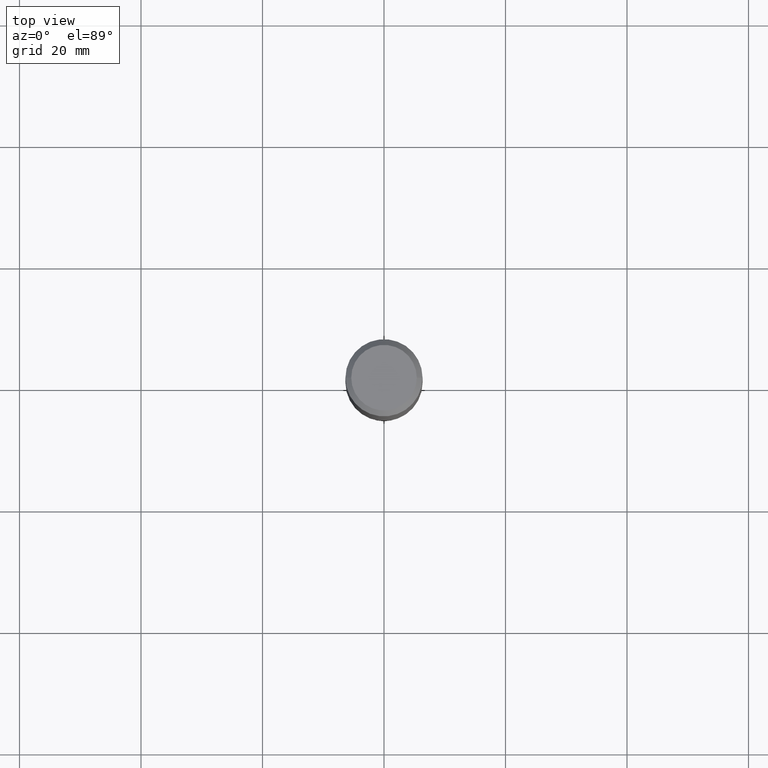
[diagram: clean part render]
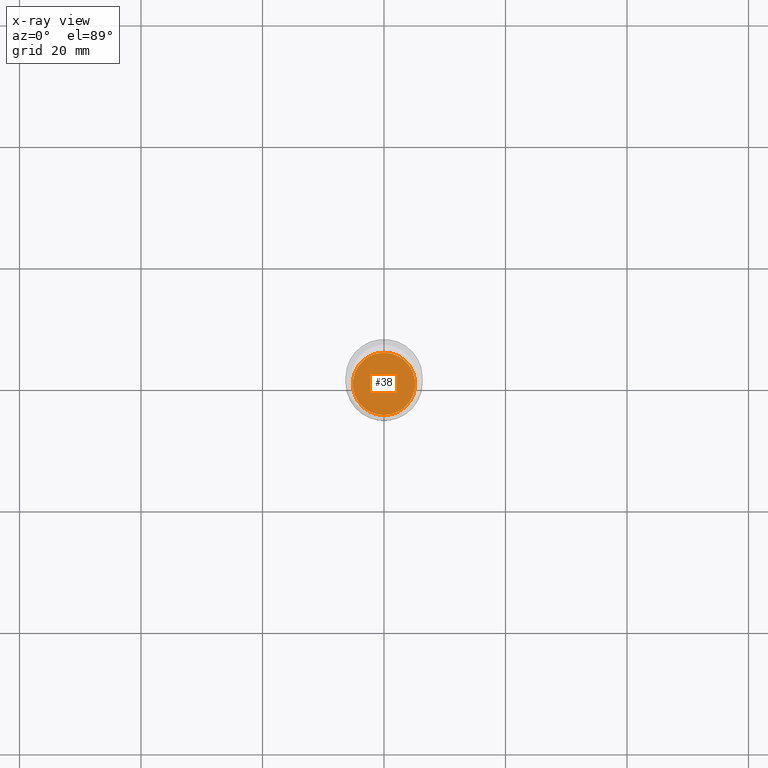
[diagram: x-ray — body ghosted, one internal face saturated and labeled with its STEP entity id]
A machine part, top view, then the same camera in x-ray: the body is ghosted and one INTERNAL B-rep face — a face not visible from any outside direction — is saturated and labeled: STEP entity #38.
In plain terms, the highlighted planar face has unit normal (0, -0, -1).
Its self-contained STEP definition (entity closure, byte-faithful):
#13 = CIRCLE ( 'NONE', #89, 0.2020000000000000129 ) ;
#27 = DIRECTION ( 'NONE',  ( 2.445167391470956759E-29, -3.491912981869310668E-15, -1.000000000000000000 ) ) ;
#38 = ADVANCED_FACE ( 'NONE', ( #203 ), #278, .F. ) ;
#39 = VERTEX_POINT ( 'NONE', #485 ) ;
#65 = ORIENTED_EDGE ( 'NONE', *, *, #270, .T. ) ;
#89 = AXIS2_PLACEMENT_3D ( 'NONE', #205, #163, #358 ) ;
#144 = ORIENTED_EDGE ( 'NONE', *, *, #422, .T. ) ;
#160 = CARTESIAN_POINT ( 'NONE',  ( 5.726065209682497413E-29, -8.175303554901225434E-15, -2.341500000000000359 ) ) ;
#163 = DIRECTION ( 'NONE',  ( -2.445167391470956759E-29, 3.491912981869311063E-15, 1.000000000000000000 ) ) ;
#186 = AXIS2_PLACEMENT_3D ( 'NONE', #160, #27, #354 ) ;
#203 = FACE_OUTER_BOUND ( 'NONE', #451, .T. ) ;
#205 = CARTESIAN_POINT ( 'NONE',  ( 5.726065209682497413E-29, -8.175303554901225434E-15, -2.341500000000000359 ) ) ;
#221 = CARTESIAN_POINT ( 'NONE',  ( 5.726065209682497413E-29, -8.175303554901225434E-15, -2.341500000000000359 ) ) ;
#270 = EDGE_CURVE ( 'NONE', #39, #329, #458, .T. ) ;
#278 = PLANE ( 'NONE',  #186 ) ;
#329 = VERTEX_POINT ( 'NONE', #359 ) ;
#336 = AXIS2_PLACEMENT_3D ( 'NONE', #221, #446, #406 ) ;
#354 = DIRECTION ( 'NONE',  ( 6.982962677686265922E-15, 1.000000000000000000, -3.491912981869310668E-15 ) ) ;
#358 = DIRECTION ( 'NONE',  ( -6.982962677686266711E-15, -1.000000000000000000, 4.057199990590489741E-15 ) ) ;
#359 = CARTESIAN_POINT ( 'NONE',  ( 1.435296326235515866E-15, 0.2019999999999918527, -2.341500000000000803 ) ) ;
#406 = DIRECTION ( 'NONE',  ( -6.982962677686266711E-15, -1.000000000000000000, 4.057199990590489741E-15 ) ) ;
#422 = EDGE_CURVE ( 'NONE', #329, #39, #13, .T. ) ;
#446 = DIRECTION ( 'NONE',  ( -2.445167391470956759E-29, 3.491912981869311063E-15, 1.000000000000000000 ) ) ;
#451 = EDGE_LOOP ( 'NONE', ( #65, #144 ) ) ;
#458 = CIRCLE ( 'NONE', #336, 0.2020000000000000129 ) ;
#485 = CARTESIAN_POINT ( 'NONE',  ( -1.410558460892568573E-15, -0.2020000000000081730, -2.341499999999999471 ) ) ;